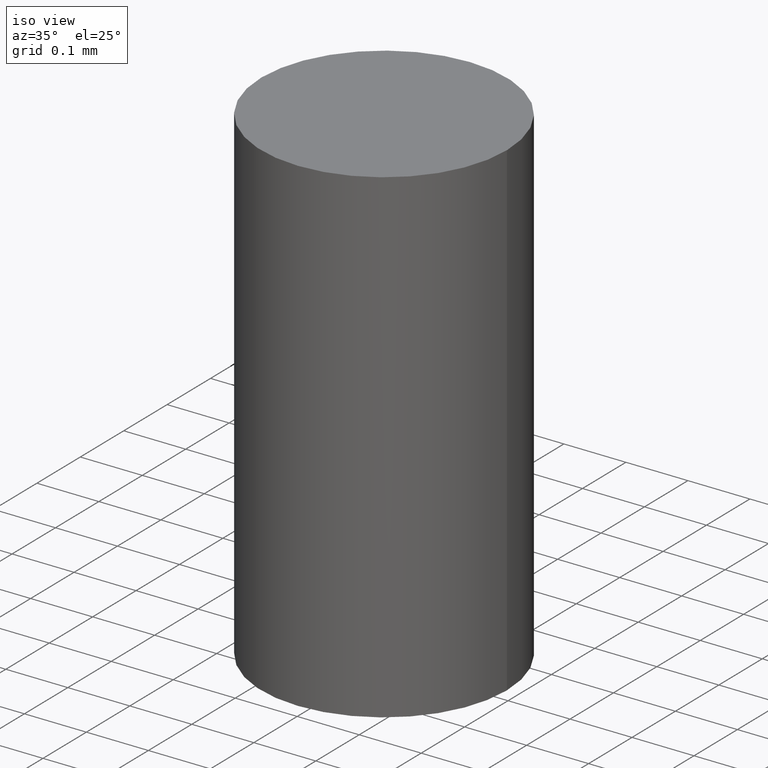
[diagram: clean part render]
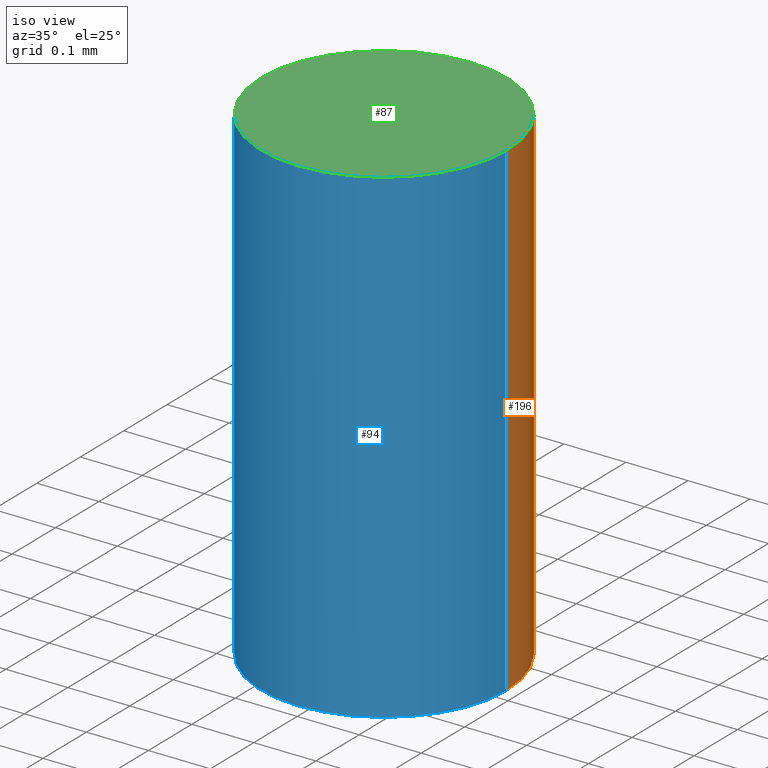
[diagram: same view with three faces highlighted in distinct colors, each labeled with its STEP entity id]
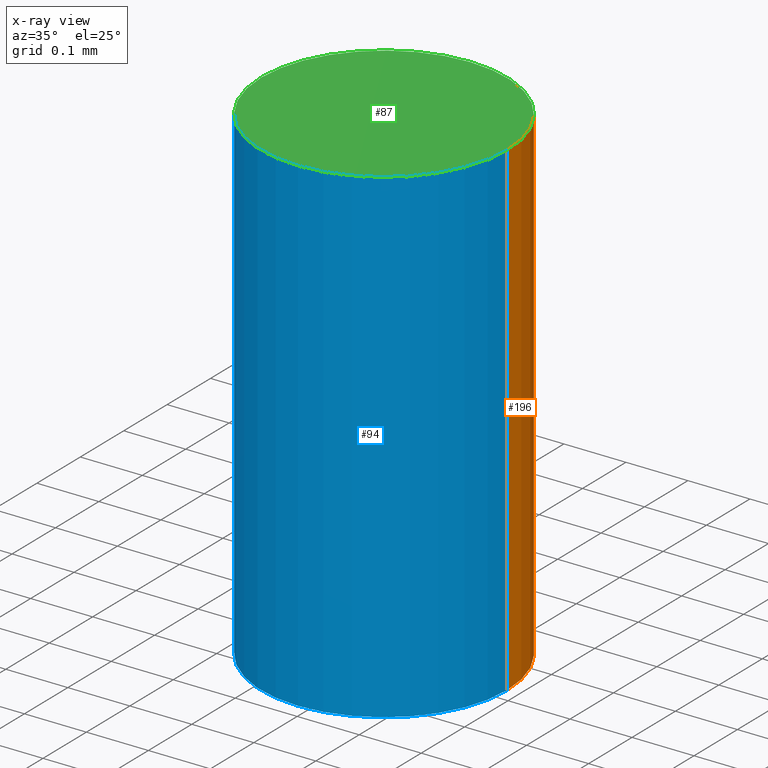
[diagram: x-ray of the same camera — body ghosted, the three highlighted faces saturated]
A machine part, iso view with three faces highlighted in distinct colors.
The next image is the same camera in x-ray (body ghosted, the three faces saturated) — at least one of them is partly hidden behind the body in this view.
Their STEP definitions:

[orange] entity #196 — the highlighted cylindrical surface (partial cylindrical patch) has radius 0.1981 mm, axis along (-0, 0, 1).
#1 = DIRECTION ( 'NONE',  ( -2.445468806185136597E-29, 3.491481338843145583E-15, 1.000000000000000000 ) ) ;
#13 = CARTESIAN_POINT ( 'NONE',  ( 0.007799999999999999642, -5.183453195646533500E-15, -1.469000000000000083 ) ) ;
#20 = AXIS2_PLACEMENT_3D ( 'NONE', #157, #84, #140 ) ;
#22 = CARTESIAN_POINT ( 'NONE',  ( -0.007799999999999990101, -5.182754899378765688E-15, -1.500000000000000222 ) ) ;
#36 = DIRECTION ( 'NONE',  ( -2.445468806185136597E-29, 3.491481338843145583E-15, 1.000000000000000000 ) ) ;
#37 = EDGE_CURVE ( 'NONE', #166, #60, #51, .T. ) ;
#38 = CARTESIAN_POINT ( 'NONE',  ( 0.000000000000000000, 0.000000000000000000, 0.000000000000000000 ) ) ;
#41 = VECTOR ( 'NONE', #180, 39.37007874015748143 ) ;
#43 = ORIENTED_EDGE ( 'NONE', *, *, #37, .F. ) ;
#47 = ORIENTED_EDGE ( 'NONE', *, *, #181, .T. ) ;
#51 = CIRCLE ( 'NONE', #173, 0.007799999999999999642 ) ;
#60 = VERTEX_POINT ( 'NONE', #62 ) ;
#62 = CARTESIAN_POINT ( 'NONE',  ( -0.007799999999999999642, -5.127681714123361178E-15, -1.469000000000000083 ) ) ;
#70 = AXIS2_PLACEMENT_3D ( 'NONE', #38, #36, #195 ) ;
#80 = DIRECTION ( 'NONE',  ( 1.000000000000000000, -6.982962677686283277E-15, 0.000000000000000000 ) ) ;
#84 = DIRECTION ( 'NONE',  ( -2.445468806185136597E-29, 3.491481338843145583E-15, 1.000000000000000000 ) ) ;
#103 = ORIENTED_EDGE ( 'NONE', *, *, #122, .T. ) ;
#104 = CIRCLE ( 'NONE', #20, 0.007799999999999999642 ) ;
#113 = CARTESIAN_POINT ( 'NONE',  ( 0.007799999999999990101, -5.290733892647335922E-15, -1.500000000000000222 ) ) ;
#117 = CYLINDRICAL_SURFACE ( 'NONE', #70, 0.007799999999999999642 ) ;
#122 = EDGE_CURVE ( 'NONE', #163, #191, #104, .T. ) ;
#127 = VECTOR ( 'NONE', #193, 39.37007874015748143 ) ;
#128 = CARTESIAN_POINT ( 'NONE',  ( 0.007799999999999999642, -5.446710888595287733E-17, 3.803417885120829600E-31 ) ) ;
#136 = EDGE_LOOP ( 'NONE', ( #103, #47, #43, #147 ) ) ;
#140 = DIRECTION ( 'NONE',  ( 1.000000000000000000, -6.982962677686283277E-15, 0.000000000000000000 ) ) ;
#143 = LINE ( 'NONE', #161, #41 ) ;
#146 = FACE_OUTER_BOUND ( 'NONE', #136, .T. ) ;
#147 = ORIENTED_EDGE ( 'NONE', *, *, #153, .F. ) ;
#153 = EDGE_CURVE ( 'NONE', #163, #166, #175, .T. ) ;
#155 = CARTESIAN_POINT ( 'NONE',  ( 3.592393676285966338E-29, -5.128986086760581011E-15, -1.469000000000000083 ) ) ;
#157 = CARTESIAN_POINT ( 'NONE',  ( 3.668203209277704895E-29, -5.237222008264718177E-15, -1.500000000000000222 ) ) ;
#161 = CARTESIAN_POINT ( 'NONE',  ( -0.007799999999999999642, 5.542233338928781195E-17, -3.836769370398826244E-31 ) ) ;
#163 = VERTEX_POINT ( 'NONE', #113 ) ;
#166 = VERTEX_POINT ( 'NONE', #13 ) ;
#173 = AXIS2_PLACEMENT_3D ( 'NONE', #155, #1, #80 ) ;
#175 = LINE ( 'NONE', #128, #127 ) ;
#180 = DIRECTION ( 'NONE',  ( -2.445468806185136877E-29, 3.491481338843145188E-15, 1.000000000000000000 ) ) ;
#181 = EDGE_CURVE ( 'NONE', #191, #60, #143, .T. ) ;
#191 = VERTEX_POINT ( 'NONE', #22 ) ;
#193 = DIRECTION ( 'NONE',  ( -2.445468806185136877E-29, 3.491481338843145188E-15, 1.000000000000000000 ) ) ;
#195 = DIRECTION ( 'NONE',  ( 1.000000000000000000, -6.982962677686266711E-15, 4.876176775795935793E-29 ) ) ;
#196 = ADVANCED_FACE ( 'NONE', ( #146 ), #117, .T. ) ;

[blue] entity #94 — the highlighted cylindrical surface (partial cylindrical patch) has radius 0.1981 mm, axis along (-0, 0, 1).
#4 = ORIENTED_EDGE ( 'NONE', *, *, #181, .F. ) ;
#10 = EDGE_CURVE ( 'NONE', #191, #163, #141, .T. ) ;
#13 = CARTESIAN_POINT ( 'NONE',  ( 0.007799999999999999642, -5.183453195646533500E-15, -1.469000000000000083 ) ) ;
#19 = DIRECTION ( 'NONE',  ( -2.445468806185136597E-29, 3.491481338843145583E-15, 1.000000000000000000 ) ) ;
#22 = CARTESIAN_POINT ( 'NONE',  ( -0.007799999999999990101, -5.182754899378765688E-15, -1.500000000000000222 ) ) ;
#32 = CARTESIAN_POINT ( 'NONE',  ( 3.668203209277704895E-29, -5.237222008264718177E-15, -1.500000000000000222 ) ) ;
#41 = VECTOR ( 'NONE', #180, 39.37007874015748143 ) ;
#50 = DIRECTION ( 'NONE',  ( -2.445468806185136597E-29, 3.491481338843145583E-15, 1.000000000000000000 ) ) ;
#52 = EDGE_LOOP ( 'NONE', ( #4, #201, #199, #83 ) ) ;
#57 = AXIS2_PLACEMENT_3D ( 'NONE', #189, #50, #171 ) ;
#60 = VERTEX_POINT ( 'NONE', #62 ) ;
#61 = CIRCLE ( 'NONE', #57, 0.007799999999999999642 ) ;
#62 = CARTESIAN_POINT ( 'NONE',  ( -0.007799999999999999642, -5.127681714123361178E-15, -1.469000000000000083 ) ) ;
#63 = DIRECTION ( 'NONE',  ( 1.000000000000000000, -6.982962677686266711E-15, 4.876176775795935793E-29 ) ) ;
#74 = AXIS2_PLACEMENT_3D ( 'NONE', #138, #109, #63 ) ;
#77 = FACE_OUTER_BOUND ( 'NONE', #52, .T. ) ;
#81 = DIRECTION ( 'NONE',  ( 1.000000000000000000, -6.982962677686283277E-15, 0.000000000000000000 ) ) ;
#83 = ORIENTED_EDGE ( 'NONE', *, *, #121, .F. ) ;
#94 = ADVANCED_FACE ( 'NONE', ( #77 ), #172, .T. ) ;
#109 = DIRECTION ( 'NONE',  ( -2.445468806185136597E-29, 3.491481338843145583E-15, 1.000000000000000000 ) ) ;
#113 = CARTESIAN_POINT ( 'NONE',  ( 0.007799999999999990101, -5.290733892647335922E-15, -1.500000000000000222 ) ) ;
#121 = EDGE_CURVE ( 'NONE', #60, #166, #61, .T. ) ;
#127 = VECTOR ( 'NONE', #193, 39.37007874015748143 ) ;
#128 = CARTESIAN_POINT ( 'NONE',  ( 0.007799999999999999642, -5.446710888595287733E-17, 3.803417885120829600E-31 ) ) ;
#138 = CARTESIAN_POINT ( 'NONE',  ( 0.000000000000000000, 0.000000000000000000, 0.000000000000000000 ) ) ;
#141 = CIRCLE ( 'NONE', #144, 0.007799999999999999642 ) ;
#143 = LINE ( 'NONE', #161, #41 ) ;
#144 = AXIS2_PLACEMENT_3D ( 'NONE', #32, #19, #81 ) ;
#153 = EDGE_CURVE ( 'NONE', #163, #166, #175, .T. ) ;
#161 = CARTESIAN_POINT ( 'NONE',  ( -0.007799999999999999642, 5.542233338928781195E-17, -3.836769370398826244E-31 ) ) ;
#163 = VERTEX_POINT ( 'NONE', #113 ) ;
#166 = VERTEX_POINT ( 'NONE', #13 ) ;
#171 = DIRECTION ( 'NONE',  ( 1.000000000000000000, -6.982962677686283277E-15, 0.000000000000000000 ) ) ;
#172 = CYLINDRICAL_SURFACE ( 'NONE', #74, 0.007799999999999999642 ) ;
#175 = LINE ( 'NONE', #128, #127 ) ;
#180 = DIRECTION ( 'NONE',  ( -2.445468806185136877E-29, 3.491481338843145188E-15, 1.000000000000000000 ) ) ;
#181 = EDGE_CURVE ( 'NONE', #191, #60, #143, .T. ) ;
#189 = CARTESIAN_POINT ( 'NONE',  ( 3.592393676285966338E-29, -5.128986086760581011E-15, -1.469000000000000083 ) ) ;
#191 = VERTEX_POINT ( 'NONE', #22 ) ;
#193 = DIRECTION ( 'NONE',  ( -2.445468806185136877E-29, 3.491481338843145188E-15, 1.000000000000000000 ) ) ;
#199 = ORIENTED_EDGE ( 'NONE', *, *, #153, .T. ) ;
#201 = ORIENTED_EDGE ( 'NONE', *, *, #10, .T. ) ;

[green] entity #87 — the highlighted planar face has unit normal (0, -0, -1).
#1 = DIRECTION ( 'NONE',  ( -2.445468806185136597E-29, 3.491481338843145583E-15, 1.000000000000000000 ) ) ;
#3 = DIRECTION ( 'NONE',  ( 2.438088387897960049E-29, -3.491481338843145188E-15, -1.000000000000000000 ) ) ;
#13 = CARTESIAN_POINT ( 'NONE',  ( 0.007799999999999999642, -5.183453195646533500E-15, -1.469000000000000083 ) ) ;
#18 = CARTESIAN_POINT ( 'NONE',  ( 5.446710888598879516E-17, 0.007799999999994870932, -1.469000000000000083 ) ) ;
#27 = EDGE_LOOP ( 'NONE', ( #101, #139 ) ) ;
#37 = EDGE_CURVE ( 'NONE', #166, #60, #51, .T. ) ;
#49 = DIRECTION ( 'NONE',  ( -1.000000000000000000, 6.982962677686265922E-15, -4.876176775795935793E-29 ) ) ;
#50 = DIRECTION ( 'NONE',  ( -2.445468806185136597E-29, 3.491481338843145583E-15, 1.000000000000000000 ) ) ;
#51 = CIRCLE ( 'NONE', #173, 0.007799999999999999642 ) ;
#57 = AXIS2_PLACEMENT_3D ( 'NONE', #189, #50, #171 ) ;
#60 = VERTEX_POINT ( 'NONE', #62 ) ;
#61 = CIRCLE ( 'NONE', #57, 0.007799999999999999642 ) ;
#62 = CARTESIAN_POINT ( 'NONE',  ( -0.007799999999999999642, -5.127681714123361178E-15, -1.469000000000000083 ) ) ;
#80 = DIRECTION ( 'NONE',  ( 1.000000000000000000, -6.982962677686283277E-15, 0.000000000000000000 ) ) ;
#87 = ADVANCED_FACE ( 'NONE', ( #123 ), #187, .F. ) ;
#101 = ORIENTED_EDGE ( 'NONE', *, *, #37, .T. ) ;
#121 = EDGE_CURVE ( 'NONE', #60, #166, #61, .T. ) ;
#123 = FACE_OUTER_BOUND ( 'NONE', #27, .T. ) ;
#139 = ORIENTED_EDGE ( 'NONE', *, *, #121, .T. ) ;
#155 = CARTESIAN_POINT ( 'NONE',  ( 3.592393676285966338E-29, -5.128986086760581011E-15, -1.469000000000000083 ) ) ;
#158 = AXIS2_PLACEMENT_3D ( 'NONE', #18, #3, #49 ) ;
#166 = VERTEX_POINT ( 'NONE', #13 ) ;
#171 = DIRECTION ( 'NONE',  ( 1.000000000000000000, -6.982962677686283277E-15, 0.000000000000000000 ) ) ;
#173 = AXIS2_PLACEMENT_3D ( 'NONE', #155, #1, #80 ) ;
#187 = PLANE ( 'NONE',  #158 ) ;
#189 = CARTESIAN_POINT ( 'NONE',  ( 3.592393676285966338E-29, -5.128986086760581011E-15, -1.469000000000000083 ) ) ;